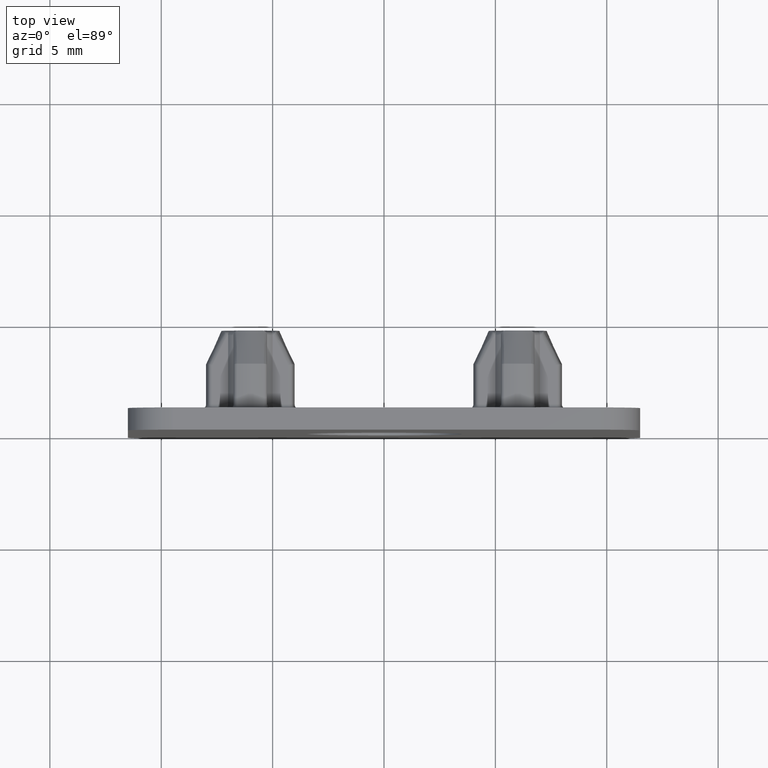
[diagram: clean part render]
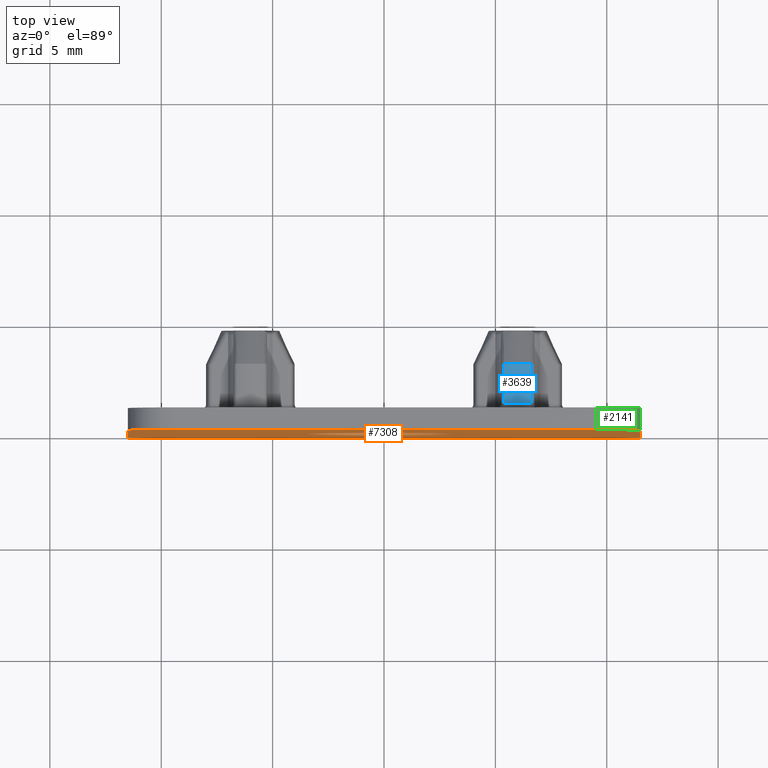
[diagram: same view with three faces highlighted in distinct colors, each labeled with its STEP entity id]
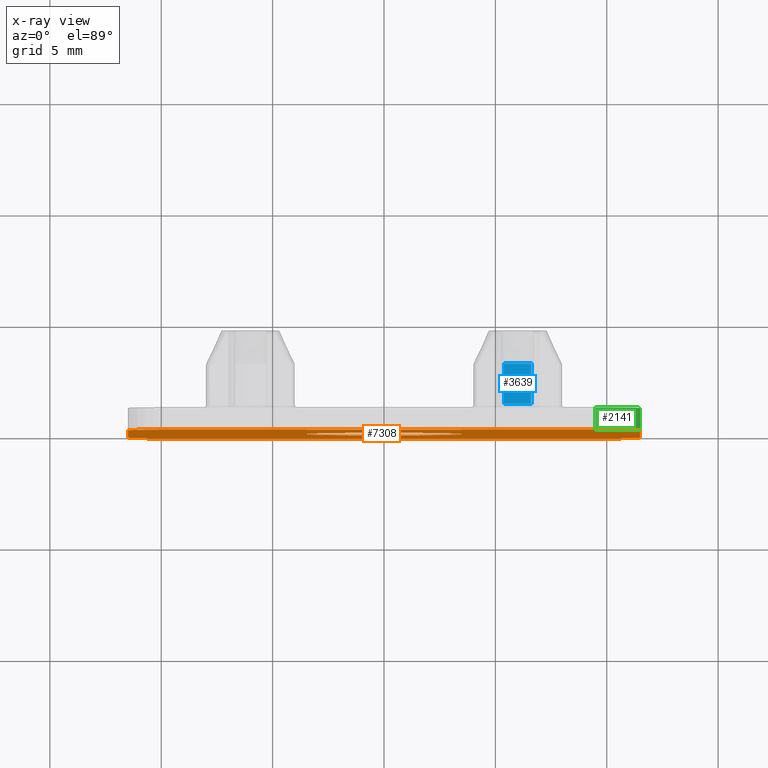
[diagram: x-ray of the same camera — body ghosted, the three highlighted faces saturated]
A machine part, top view with three faces highlighted in distinct colors.
The next image is the same camera in x-ray (body ghosted, the three faces saturated) — at least one of them is partly hidden behind the body in this view.
Their STEP definitions:

[orange] entity #7308 — the highlighted planar face has unit normal (0, -1, 0).
#99 = ORIENTED_EDGE ( 'NONE', *, *, #1793, .F. ) ;
#211 = FACE_OUTER_BOUND ( 'NONE', #14526, .T. ) ;
#1284 = CARTESIAN_POINT ( 'NONE',  ( 0.0000000000000000000, 0.0000000000000000000, 0.0000000000000000000 ) ) ;
#1553 = AXIS2_PLACEMENT_3D ( 'NONE', #15260, #2507, #10142 ) ;
#1704 = EDGE_CURVE ( 'NONE', #10488, #11847, #14193, .T. ) ;
#1793 = EDGE_CURVE ( 'NONE', #3917, #10436, #7416, .T. ) ;
#2300 = VERTEX_POINT ( 'NONE', #9498 ) ;
#2319 = ORIENTED_EDGE ( 'NONE', *, *, #10405, .F. ) ;
#2447 = CARTESIAN_POINT ( 'NONE',  ( 9.500000000000000000, 0.0000000000000000000, 9.499999999999998200 ) ) ;
#2507 = DIRECTION ( 'NONE',  ( 0.0000000000000000000, 1.000000000000000000, 0.0000000000000000000 ) ) ;
#2595 = CARTESIAN_POINT ( 'NONE',  ( 0.0000000000000000000, 0.0000000000000000000, -3.499999999999999600 ) ) ;
#2697 = CIRCLE ( 'NONE', #14123, 2.000000000000000000 ) ;
#3376 = CARTESIAN_POINT ( 'NONE',  ( -11.50000000000000000, 0.0000000000000000000, -11.50000000000000400 ) ) ;
#3577 = ORIENTED_EDGE ( 'NONE', *, *, #4514, .T. ) ;
#3671 = CARTESIAN_POINT ( 'NONE',  ( 11.50000000000000000, 0.0000000000000000000, 11.49999999999999800 ) ) ;
#3701 = CARTESIAN_POINT ( 'NONE',  ( -11.50000000000000000, 0.0000000000000000000, 9.499999999999998200 ) ) ;
#3759 = CARTESIAN_POINT ( 'NONE',  ( -11.50000000000000000, 0.0000000000000000000, 11.49999999999999800 ) ) ;
#3917 = VERTEX_POINT ( 'NONE', #15528 ) ;
#3927 = DIRECTION ( 'NONE',  ( 0.0000000000000000000, -1.000000000000000000, 0.0000000000000000000 ) ) ;
#3979 = EDGE_CURVE ( 'NONE', #4491, #10436, #2697, .T. ) ;
#4250 = LINE ( 'NONE', #3759, #13241 ) ;
#4274 = DIRECTION ( 'NONE',  ( -0.0000000000000000000, -0.0000000000000000000, 1.000000000000000000 ) ) ;
#4278 = VERTEX_POINT ( 'NONE', #15006 ) ;
#4491 = VERTEX_POINT ( 'NONE', #5402 ) ;
#4514 = EDGE_CURVE ( 'NONE', #3917, #5464, #15700, .T. ) ;
#4747 = ORIENTED_EDGE ( 'NONE', *, *, #15032, .F. ) ;
#4837 = DIRECTION ( 'NONE',  ( 0.0000000000000000000, -1.000000000000000000, 0.0000000000000000000 ) ) ;
#4955 = PLANE ( 'NONE',  #16070 ) ;
#5001 = EDGE_CURVE ( 'NONE', #11847, #10488, #15099, .T. ) ;
#5054 = DIRECTION ( 'NONE',  ( 1.000000000000000000, 0.0000000000000000000, 0.0000000000000000000 ) ) ;
#5110 = DIRECTION ( 'NONE',  ( 0.0000000000000000000, 0.0000000000000000000, -1.000000000000000000 ) ) ;
#5151 = ORIENTED_EDGE ( 'NONE', *, *, #3979, .T. ) ;
#5242 = DIRECTION ( 'NONE',  ( 0.0000000000000000000, -1.000000000000000000, 0.0000000000000000000 ) ) ;
#5402 = CARTESIAN_POINT ( 'NONE',  ( -9.500000000000000000, 0.0000000000000000000, 11.49999999999999800 ) ) ;
#5464 = VERTEX_POINT ( 'NONE', #7063 ) ;
#6056 = VECTOR ( 'NONE', #13893, 1000.000000000000000 ) ;
#6279 = CARTESIAN_POINT ( 'NONE',  ( 4.286263797015736100E-016, 0.0000000000000000000, 3.499999999999999600 ) ) ;
#6302 = CARTESIAN_POINT ( 'NONE',  ( 9.499999999999998200, 0.0000000000000000000, -11.50000000000000400 ) ) ;
#6319 = CIRCLE ( 'NONE', #13350, 2.000000000000000000 ) ;
#6564 = CARTESIAN_POINT ( 'NONE',  ( 11.50000000000000000, 0.0000000000000000000, 9.499999999999998200 ) ) ;
#6790 = CARTESIAN_POINT ( 'NONE',  ( -11.50000000000000000, 0.0000000000000000000, 11.49999999999999800 ) ) ;
#6791 = VECTOR ( 'NONE', #4274, 1000.000000000000000 ) ;
#7063 = CARTESIAN_POINT ( 'NONE',  ( -9.500000000000000000, 0.0000000000000000000, -11.50000000000000400 ) ) ;
#7308 = ADVANCED_FACE ( 'NONE', ( #211, #14419 ), #4955, .T. ) ;
#7314 = ORIENTED_EDGE ( 'NONE', *, *, #5001, .T. ) ;
#7362 = CARTESIAN_POINT ( 'NONE',  ( 9.499999999999998200, 0.0000000000000000000, -9.500000000000003600 ) ) ;
#7416 = LINE ( 'NONE', #6790, #6791 ) ;
#7764 = DIRECTION ( 'NONE',  ( 0.0000000000000000000, 0.0000000000000000000, -1.000000000000000000 ) ) ;
#7854 = EDGE_CURVE ( 'NONE', #13684, #4278, #14613, .T. ) ;
#7866 = CARTESIAN_POINT ( 'NONE',  ( -9.500000000000000000, 0.0000000000000000000, -9.500000000000003600 ) ) ;
#7915 = EDGE_LOOP ( 'NONE', ( #7314, #15615 ) ) ;
#8110 = EDGE_CURVE ( 'NONE', #13684, #2300, #15219, .T. ) ;
#8923 = DIRECTION ( 'NONE',  ( 0.0000000000000000000, 0.0000000000000000000, -1.000000000000000000 ) ) ;
#9163 = AXIS2_PLACEMENT_3D ( 'NONE', #7866, #5242, #7764 ) ;
#9487 = ORIENTED_EDGE ( 'NONE', *, *, #8110, .T. ) ;
#9498 = CARTESIAN_POINT ( 'NONE',  ( 9.499999999999998200, 0.0000000000000000000, 11.49999999999999800 ) ) ;
#10008 = AXIS2_PLACEMENT_3D ( 'NONE', #1284, #10258, #15387 ) ;
#10142 = DIRECTION ( 'NONE',  ( 0.0000000000000000000, 0.0000000000000000000, 1.000000000000000000 ) ) ;
#10179 = CARTESIAN_POINT ( 'NONE',  ( -9.500000000000000000, 0.0000000000000000000, 9.499999999999998200 ) ) ;
#10258 = DIRECTION ( 'NONE',  ( 0.0000000000000000000, 1.000000000000000000, 0.0000000000000000000 ) ) ;
#10405 = EDGE_CURVE ( 'NONE', #4491, #2300, #4250, .T. ) ;
#10436 = VERTEX_POINT ( 'NONE', #3701 ) ;
#10488 = VERTEX_POINT ( 'NONE', #6279 ) ;
#11847 = VERTEX_POINT ( 'NONE', #2595 ) ;
#12310 = VECTOR ( 'NONE', #12345, 1000.000000000000000 ) ;
#12345 = DIRECTION ( 'NONE',  ( -1.000000000000000000, -0.0000000000000000000, -0.0000000000000000000 ) ) ;
#12433 = ORIENTED_EDGE ( 'NONE', *, *, #7854, .F. ) ;
#12506 = CARTESIAN_POINT ( 'NONE',  ( 0.0000000000000000000, 0.0000000000000000000, 0.0000000000000000000 ) ) ;
#12721 = DIRECTION ( 'NONE',  ( 0.0000000000000000000, -0.0000000000000000000, -1.000000000000000000 ) ) ;
#12820 = DIRECTION ( 'NONE',  ( 0.0000000000000000000, -1.000000000000000000, 0.0000000000000000000 ) ) ;
#12967 = DIRECTION ( 'NONE',  ( 0.0000000000000000000, -1.000000000000000000, 0.0000000000000000000 ) ) ;
#13241 = VECTOR ( 'NONE', #5054, 1000.000000000000000 ) ;
#13349 = VERTEX_POINT ( 'NONE', #6302 ) ;
#13350 = AXIS2_PLACEMENT_3D ( 'NONE', #7362, #12820, #16446 ) ;
#13614 = EDGE_CURVE ( 'NONE', #13349, #4278, #6319, .T. ) ;
#13684 = VERTEX_POINT ( 'NONE', #6564 ) ;
#13893 = DIRECTION ( 'NONE',  ( 0.0000000000000000000, 0.0000000000000000000, -1.000000000000000000 ) ) ;
#14123 = AXIS2_PLACEMENT_3D ( 'NONE', #10179, #12967, #5110 ) ;
#14193 = CIRCLE ( 'NONE', #10008, 3.499999999999999600 ) ;
#14419 = FACE_BOUND ( 'NONE', #7915, .T. ) ;
#14526 = EDGE_LOOP ( 'NONE', ( #99, #3577, #4747, #15631, #12433, #9487, #2319, #5151 ) ) ;
#14613 = LINE ( 'NONE', #3671, #6056 ) ;
#14802 = AXIS2_PLACEMENT_3D ( 'NONE', #2447, #3927, #8923 ) ;
#15006 = CARTESIAN_POINT ( 'NONE',  ( 11.50000000000000000, 0.0000000000000000000, -9.500000000000003600 ) ) ;
#15032 = EDGE_CURVE ( 'NONE', #13349, #5464, #16099, .T. ) ;
#15099 = CIRCLE ( 'NONE', #1553, 3.499999999999999600 ) ;
#15219 = CIRCLE ( 'NONE', #14802, 2.000000000000000000 ) ;
#15260 = CARTESIAN_POINT ( 'NONE',  ( 0.0000000000000000000, 0.0000000000000000000, 0.0000000000000000000 ) ) ;
#15387 = DIRECTION ( 'NONE',  ( 0.0000000000000000000, 0.0000000000000000000, 1.000000000000000000 ) ) ;
#15528 = CARTESIAN_POINT ( 'NONE',  ( -11.50000000000000000, 0.0000000000000000000, -9.500000000000003600 ) ) ;
#15615 = ORIENTED_EDGE ( 'NONE', *, *, #1704, .T. ) ;
#15631 = ORIENTED_EDGE ( 'NONE', *, *, #13614, .T. ) ;
#15700 = CIRCLE ( 'NONE', #9163, 2.000000000000000000 ) ;
#16070 = AXIS2_PLACEMENT_3D ( 'NONE', #12506, #4837, #12721 ) ;
#16099 = LINE ( 'NONE', #3376, #12310 ) ;
#16446 = DIRECTION ( 'NONE',  ( 0.0000000000000000000, 0.0000000000000000000, -1.000000000000000000 ) ) ;

[blue] entity #3639 — the highlighted cylindrical surface (partial cylindrical patch) has radius 2 mm, axis along (-0, -1, -0).
#978 = DIRECTION ( 'NONE',  ( -0.0000000000000000000, 1.000000000000000000, -0.0000000000000000000 ) ) ;
#1020 = VERTEX_POINT ( 'NONE', #15380 ) ;
#1183 = CARTESIAN_POINT ( 'NONE',  ( 6.000000000000002700, 1.200000000000000200, 7.500000000000000900 ) ) ;
#1728 = EDGE_CURVE ( 'NONE', #1020, #5442, #7010, .T. ) ;
#2186 = LINE ( 'NONE', #8481, #5090 ) ;
#2403 = CARTESIAN_POINT ( 'NONE',  ( 6.606910480403331400, 2.999999999999997800, 9.405692666942801600 ) ) ;
#2817 = EDGE_CURVE ( 'NONE', #5442, #5113, #7602, .T. ) ;
#2861 = DIRECTION ( 'NONE',  ( -0.0000000000000000000, -1.000000000000000000, -0.0000000000000000000 ) ) ;
#2913 = CARTESIAN_POINT ( 'NONE',  ( 5.388888888888890200, 2.999766929424878100, 9.404348500111403600 ) ) ;
#3107 = CYLINDRICAL_SURFACE ( 'NONE', #11579, 2.000000000000002700 ) ;
#3639 = ADVANCED_FACE ( 'NONE', ( #15896 ), #3107, .T. ) ;
#4060 = EDGE_LOOP ( 'NONE', ( #6887, #7692, #6284, #10071, #12045, #6875 ) ) ;
#5090 = VECTOR ( 'NONE', #5964, 1000.000000000000000 ) ;
#5113 = VERTEX_POINT ( 'NONE', #12283 ) ;
#5204 = B_SPLINE_CURVE_WITH_KNOTS ( 'NONE', 3,
 ( #10413, #9254, #6582, #2913 ),
 .UNSPECIFIED., .F., .F.,
 ( 4, 4 ),
 ( 0.0000000000000000000, 6.621825019245537200E-006 ),
 .UNSPECIFIED. ) ;
#5442 = VERTEX_POINT ( 'NONE', #14579 ) ;
#5964 = DIRECTION ( 'NONE',  ( -0.0000000000000000000, -1.000000000000000000, -0.0000000000000000000 ) ) ;
#6284 = ORIENTED_EDGE ( 'NONE', *, *, #8990, .T. ) ;
#6582 = CARTESIAN_POINT ( 'NONE',  ( 5.390985353649976600, 2.999922782017646400, 9.405021261903417700 ) ) ;
#6875 = ORIENTED_EDGE ( 'NONE', *, *, #8531, .T. ) ;
#6887 = ORIENTED_EDGE ( 'NONE', *, *, #1728, .T. ) ;
#7010 = LINE ( 'NONE', #8027, #12617 ) ;
#7086 = CIRCLE ( 'NONE', #10321, 2.000000000000002700 ) ;
#7093 = EDGE_CURVE ( 'NONE', #10054, #14254, #5204, .T. ) ;
#7131 = DIRECTION ( 'NONE',  ( 0.0000000000000000000, 0.0000000000000000000, 1.000000000000000000 ) ) ;
#7157 = CARTESIAN_POINT ( 'NONE',  ( 5.395193450157394800, 2.999999999999995600, 9.406360154133393400 ) ) ;
#7187 = CARTESIAN_POINT ( 'NONE',  ( 6.000000000000002700, 2.999999999999995600, 7.500000000000000900 ) ) ;
#7602 = B_SPLINE_CURVE_WITH_KNOTS ( 'NONE', 3,
 ( #14043, #15338, #2403, #11411 ),
 .UNSPECIFIED., .F., .F.,
 ( 4, 4 ),
 ( 0.0000000000000000000, 6.621825019243901500E-006 ),
 .UNSPECIFIED. ) ;
#7610 = DIRECTION ( 'NONE',  ( 2.602085213965207100E-015, 0.0000000000000000000, -1.000000000000000000 ) ) ;
#7692 = ORIENTED_EDGE ( 'NONE', *, *, #2817, .T. ) ;
#7814 = CARTESIAN_POINT ( 'NONE',  ( 5.388888888888890200, 2.999766929424878100, 9.404348500111403600 ) ) ;
#8027 = CARTESIAN_POINT ( 'NONE',  ( 6.611111111111113400, 4.500000000000000900, 9.404348500111403600 ) ) ;
#8037 = CARTESIAN_POINT ( 'NONE',  ( 6.000000000000002700, 4.500000000000000900, 7.500000000000000900 ) ) ;
#8425 = DIRECTION ( 'NONE',  ( 0.0000000000000000000, -1.000000000000000000, 0.0000000000000000000 ) ) ;
#8481 = CARTESIAN_POINT ( 'NONE',  ( 5.388888888888890200, 4.500000000000000900, 9.404348500111403600 ) ) ;
#8531 = EDGE_CURVE ( 'NONE', #8552, #1020, #8932, .T. ) ;
#8552 = VERTEX_POINT ( 'NONE', #10975 ) ;
#8932 = CIRCLE ( 'NONE', #13414, 2.000000000000002700 ) ;
#8948 = EDGE_CURVE ( 'NONE', #14254, #8552, #2186, .T. ) ;
#8990 = EDGE_CURVE ( 'NONE', #5113, #10054, #7086, .T. ) ;
#9254 = CARTESIAN_POINT ( 'NONE',  ( 5.393089519596673000, 2.999999999999995600, 9.405692666942799800 ) ) ;
#10054 = VERTEX_POINT ( 'NONE', #7157 ) ;
#10071 = ORIENTED_EDGE ( 'NONE', *, *, #7093, .T. ) ;
#10321 = AXIS2_PLACEMENT_3D ( 'NONE', #7187, #8425, #7131 ) ;
#10413 = CARTESIAN_POINT ( 'NONE',  ( 5.395193450157394800, 2.999999999999995600, 9.406360154133393400 ) ) ;
#10975 = CARTESIAN_POINT ( 'NONE',  ( 5.388888888888890200, 1.200000000000000200, 9.404348500111403600 ) ) ;
#11411 = CARTESIAN_POINT ( 'NONE',  ( 6.604806549842610500, 2.999999999999995600, 9.406360154133393400 ) ) ;
#11579 = AXIS2_PLACEMENT_3D ( 'NONE', #8037, #2861, #13168 ) ;
#11890 = DIRECTION ( 'NONE',  ( 0.0000000000000000000, 1.000000000000000000, 0.0000000000000000000 ) ) ;
#12045 = ORIENTED_EDGE ( 'NONE', *, *, #8948, .T. ) ;
#12283 = CARTESIAN_POINT ( 'NONE',  ( 6.604806549842610500, 2.999999999999995600, 9.406360154133393400 ) ) ;
#12617 = VECTOR ( 'NONE', #11890, 1000.000000000000000 ) ;
#13168 = DIRECTION ( 'NONE',  ( 0.0000000000000000000, 0.0000000000000000000, -1.000000000000000000 ) ) ;
#13414 = AXIS2_PLACEMENT_3D ( 'NONE', #1183, #978, #7610 ) ;
#14043 = CARTESIAN_POINT ( 'NONE',  ( 6.611111111111113400, 2.999766929424878100, 9.404348500111403600 ) ) ;
#14254 = VERTEX_POINT ( 'NONE', #7814 ) ;
#14579 = CARTESIAN_POINT ( 'NONE',  ( 6.611111111111113400, 2.999766929424878100, 9.404348500111403600 ) ) ;
#15338 = CARTESIAN_POINT ( 'NONE',  ( 6.609014646350027000, 2.999922782017648200, 9.405021261903417700 ) ) ;
#15380 = CARTESIAN_POINT ( 'NONE',  ( 6.611111111111113400, 1.200000000000000200, 9.404348500111403600 ) ) ;
#15896 = FACE_OUTER_BOUND ( 'NONE', #4060, .T. ) ;

[green] entity #2141 — the highlighted cylindrical surface (partial cylindrical patch) has radius 2 mm, axis along (0, -1, 0).
#200 = AXIS2_PLACEMENT_3D ( 'NONE', #14285, #1506, #14336 ) ;
#490 = EDGE_CURVE ( 'NONE', #10882, #13684, #9431, .T. ) ;
#1506 = DIRECTION ( 'NONE',  ( -0.0000000000000000000, 1.000000000000000000, -0.0000000000000000000 ) ) ;
#2141 = ADVANCED_FACE ( 'NONE', ( #11012 ), #10803, .T. ) ;
#2285 = EDGE_CURVE ( 'NONE', #14428, #10882, #15977, .T. ) ;
#2300 = VERTEX_POINT ( 'NONE', #9498 ) ;
#2447 = CARTESIAN_POINT ( 'NONE',  ( 9.500000000000000000, 0.0000000000000000000, 9.499999999999998200 ) ) ;
#2649 = EDGE_CURVE ( 'NONE', #2300, #14428, #3588, .T. ) ;
#3581 = DIRECTION ( 'NONE',  ( 0.0000000000000000000, -1.000000000000000000, 0.0000000000000000000 ) ) ;
#3588 = LINE ( 'NONE', #5436, #4806 ) ;
#3927 = DIRECTION ( 'NONE',  ( 0.0000000000000000000, -1.000000000000000000, 0.0000000000000000000 ) ) ;
#4110 = CARTESIAN_POINT ( 'NONE',  ( 9.499999999999998200, 1.000000000000000000, 11.49999999999999800 ) ) ;
#4452 = CARTESIAN_POINT ( 'NONE',  ( 11.50000000000000000, 1.000000000000000000, 9.499999999999998200 ) ) ;
#4806 = VECTOR ( 'NONE', #7967, 1000.000000000000000 ) ;
#5263 = ORIENTED_EDGE ( 'NONE', *, *, #2649, .F. ) ;
#5436 = CARTESIAN_POINT ( 'NONE',  ( 9.499999999999998200, 1.000000000000000000, 11.49999999999999800 ) ) ;
#6253 = AXIS2_PLACEMENT_3D ( 'NONE', #7392, #3581, #7780 ) ;
#6564 = CARTESIAN_POINT ( 'NONE',  ( 11.50000000000000000, 0.0000000000000000000, 9.499999999999998200 ) ) ;
#7392 = CARTESIAN_POINT ( 'NONE',  ( 9.500000000000000000, 1.000000000000000000, 9.499999999999998200 ) ) ;
#7780 = DIRECTION ( 'NONE',  ( 0.0000000000000000000, 0.0000000000000000000, -1.000000000000000000 ) ) ;
#7888 = ORIENTED_EDGE ( 'NONE', *, *, #8110, .F. ) ;
#7967 = DIRECTION ( 'NONE',  ( -0.0000000000000000000, 1.000000000000000000, -0.0000000000000000000 ) ) ;
#8110 = EDGE_CURVE ( 'NONE', #13684, #2300, #15219, .T. ) ;
#8923 = DIRECTION ( 'NONE',  ( 0.0000000000000000000, 0.0000000000000000000, -1.000000000000000000 ) ) ;
#9431 = LINE ( 'NONE', #9553, #16216 ) ;
#9498 = CARTESIAN_POINT ( 'NONE',  ( 9.499999999999998200, 0.0000000000000000000, 11.49999999999999800 ) ) ;
#9553 = CARTESIAN_POINT ( 'NONE',  ( 11.50000000000000000, 1.000000000000000000, 9.499999999999998200 ) ) ;
#10803 = CYLINDRICAL_SURFACE ( 'NONE', #6253, 2.000000000000000000 ) ;
#10882 = VERTEX_POINT ( 'NONE', #4452 ) ;
#11012 = FACE_OUTER_BOUND ( 'NONE', #15915, .T. ) ;
#13040 = ORIENTED_EDGE ( 'NONE', *, *, #490, .F. ) ;
#13684 = VERTEX_POINT ( 'NONE', #6564 ) ;
#14285 = CARTESIAN_POINT ( 'NONE',  ( 9.500000000000000000, 1.000000000000000000, 9.499999999999998200 ) ) ;
#14336 = DIRECTION ( 'NONE',  ( 0.0000000000000000000, 0.0000000000000000000, -1.000000000000000000 ) ) ;
#14428 = VERTEX_POINT ( 'NONE', #4110 ) ;
#14802 = AXIS2_PLACEMENT_3D ( 'NONE', #2447, #3927, #8923 ) ;
#14822 = DIRECTION ( 'NONE',  ( 0.0000000000000000000, -1.000000000000000000, 0.0000000000000000000 ) ) ;
#15219 = CIRCLE ( 'NONE', #14802, 2.000000000000000000 ) ;
#15720 = ORIENTED_EDGE ( 'NONE', *, *, #2285, .F. ) ;
#15915 = EDGE_LOOP ( 'NONE', ( #15720, #5263, #7888, #13040 ) ) ;
#15977 = CIRCLE ( 'NONE', #200, 2.000000000000000000 ) ;
#16216 = VECTOR ( 'NONE', #14822, 1000.000000000000000 ) ;